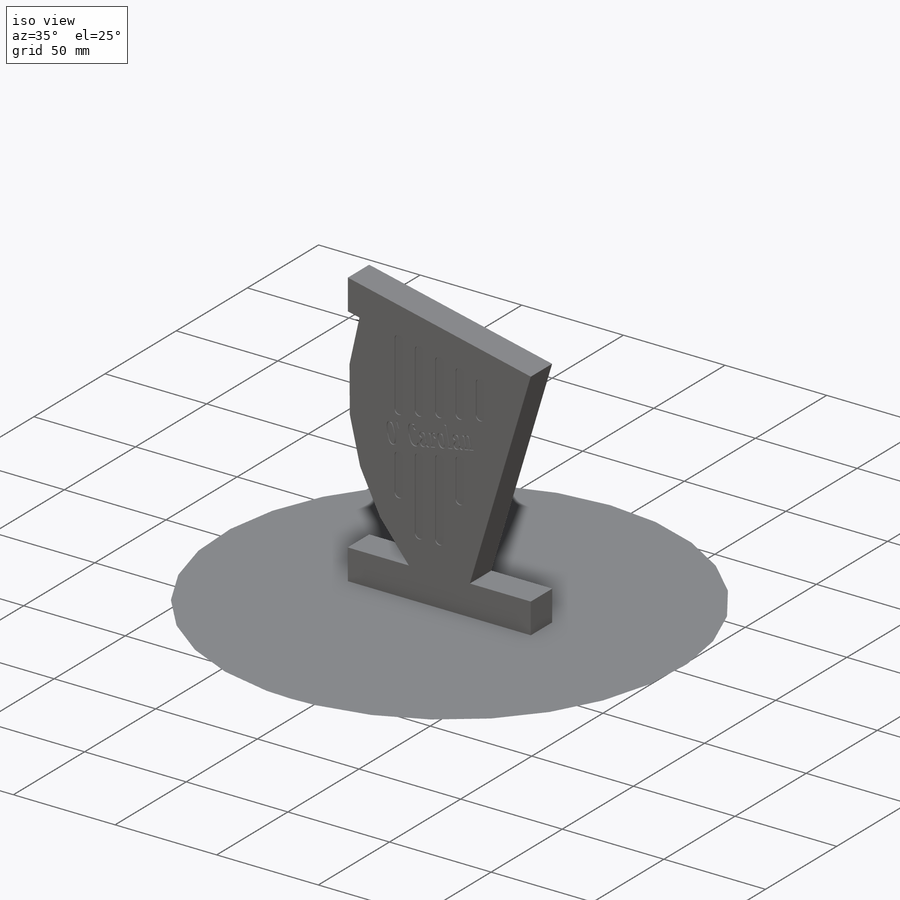
[diagram: iso view]
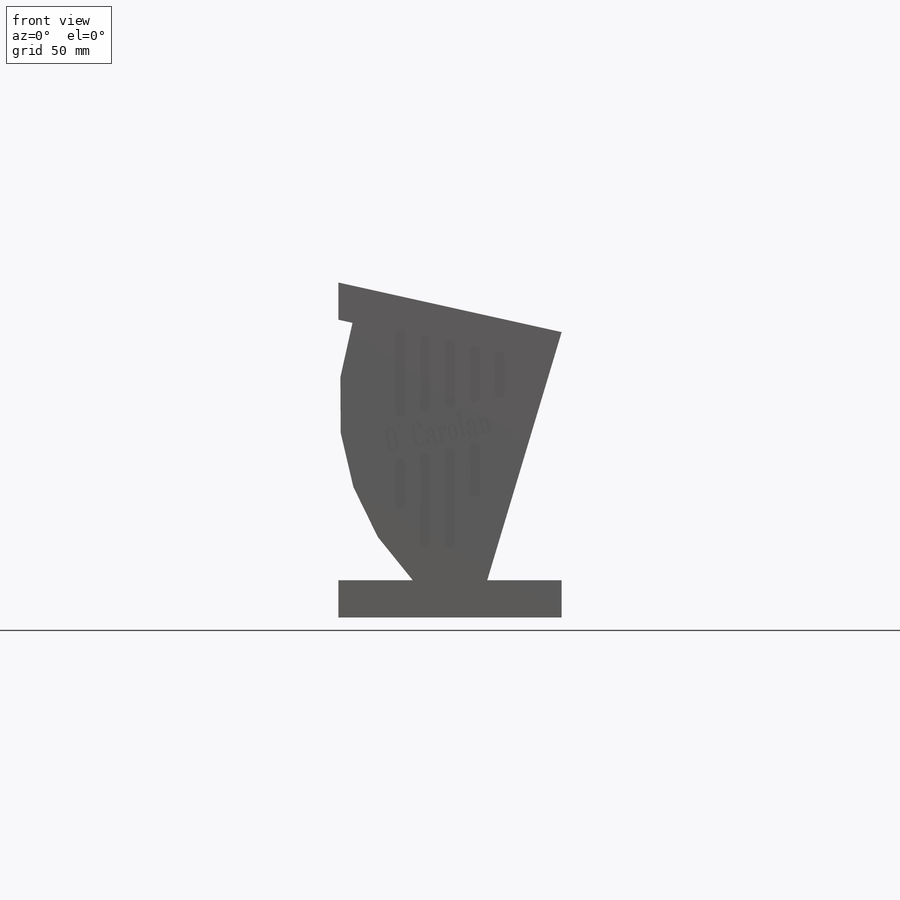
[diagram: front view]
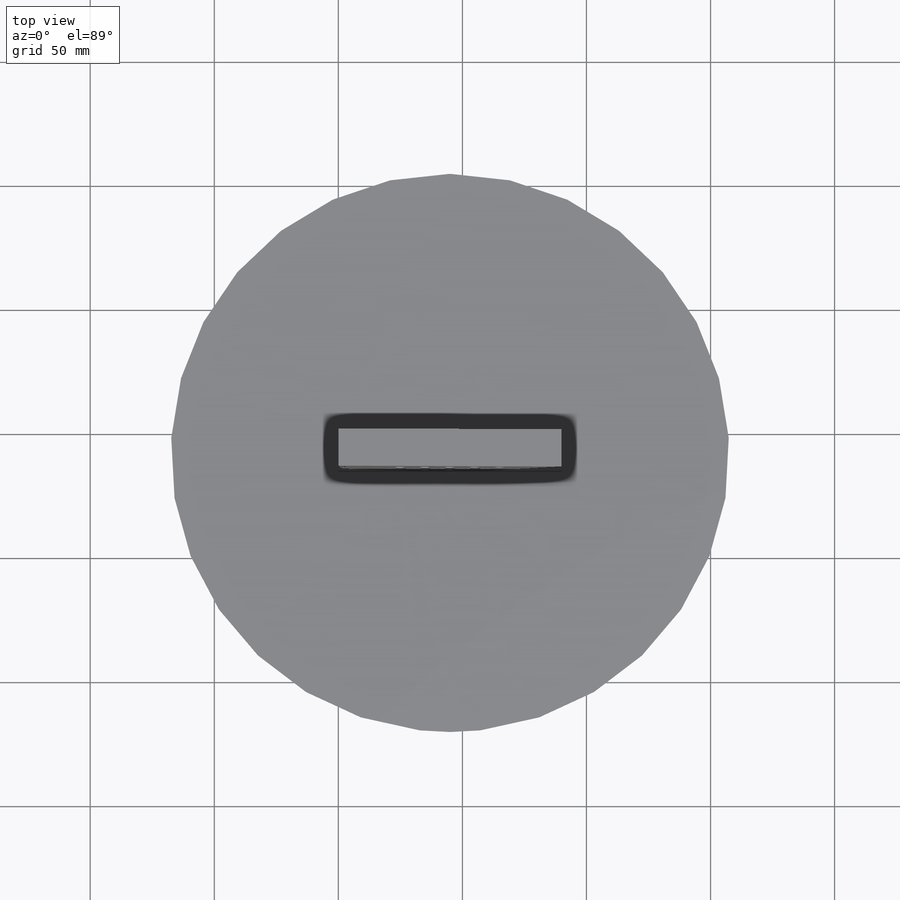
[diagram: top view]
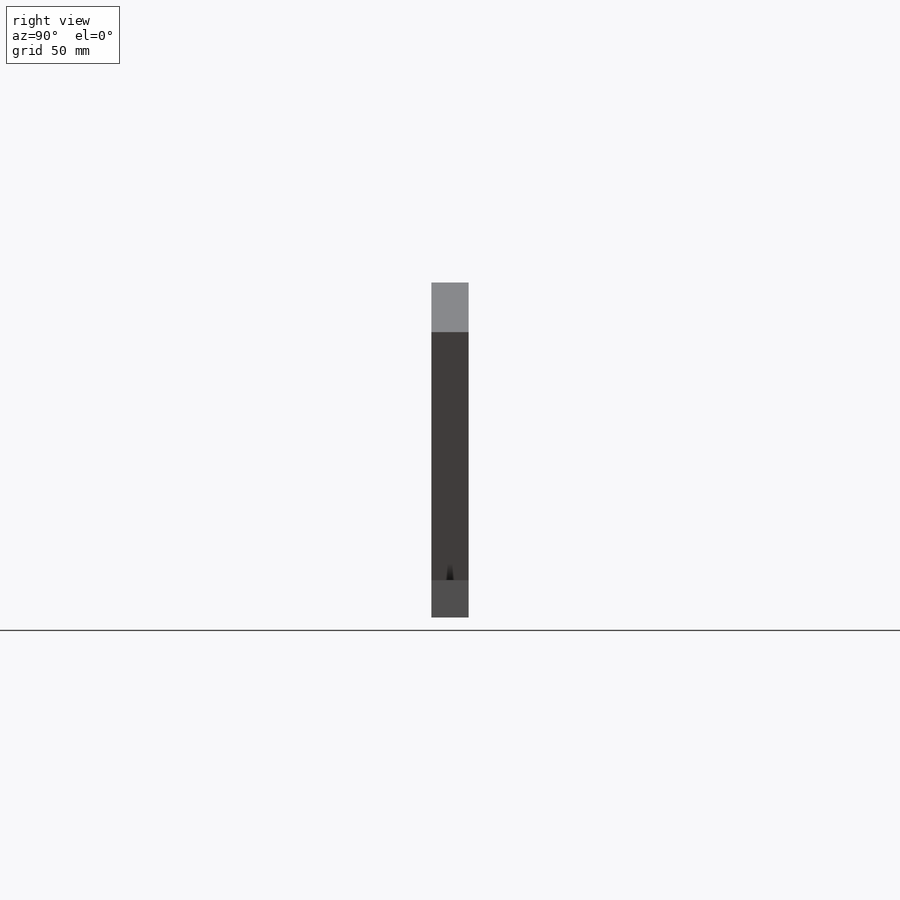
[diagram: right view]
SOLIDWORKS PART (.sldprt)
format: sldprt  version: not decoded by parser v0  size: 563,200 bytes
history: native  units: mm
features: sketch x4, extrude x2, cut_extrude x2, material x1 (+14 scaffold rows collapsed)
feature tree (23):
  scaffold x14  (default folders/planes/origin — collapsed)
  material  "Maple"
  sketch  "Sketch1"  dims[c1.D8=~6.581105mm c1.D1=90.0mm c1.D2=30.0mm c1.D3=30.0mm c1.D4=100.0mm c1.D5=20.0mm c1.D6=15.0mm c1.D7=15.0mm c2.D8=90.0mm c2.D9=15.0mm c3.D8=100.0mm]
  extrude  "Extrude1"  Depth=15mm
  sketch  "Sketch2"  dims[D1=5.0mm]
  cut_extrude  "Cut-Extrude1"  Depth=0.5mm
  sketch  "Sketch4"  dims[D1=5.0mm]
  cut_extrude  "Cut-Extrude2"  Depth=0.5mm
  sketch  "Sketch5"  dims[D1=225.0mm]
  extrude  "Extrude2"  Depth=0.01mm
decode coverage: 8 of 8 modeling features carry decoded parameters
note: ~ marks probable driven/reference dimensions
note: suppression state not decoded; provenance and decode notes live in map.json
